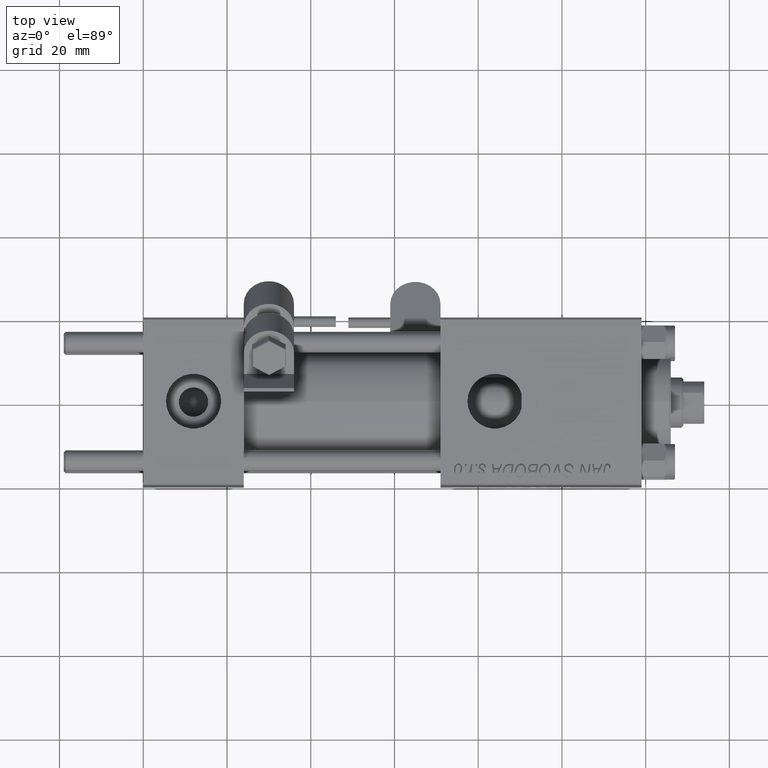
[diagram: clean part render]
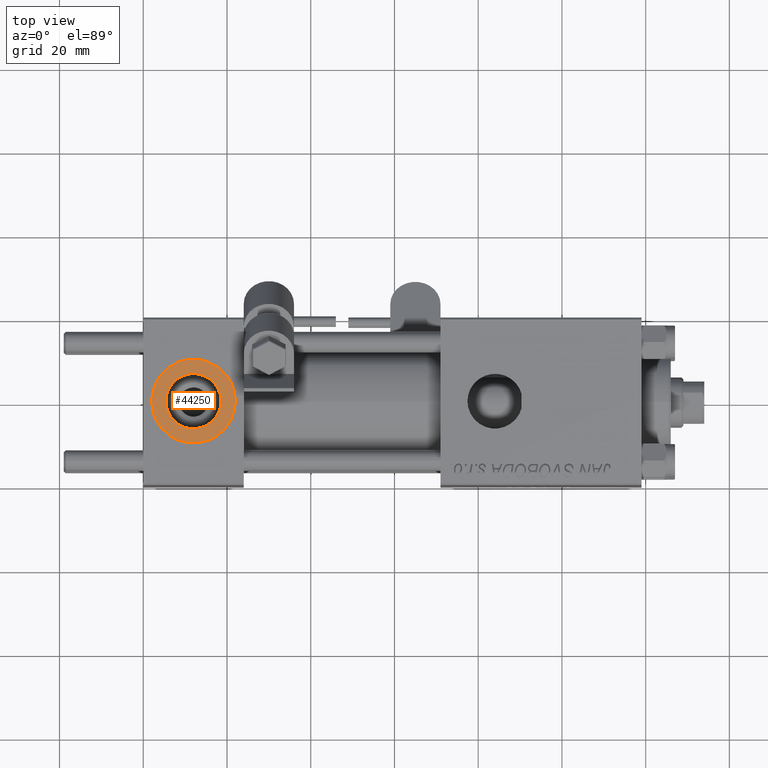
[diagram: same view with one face highlighted and labeled with its STEP entity id]
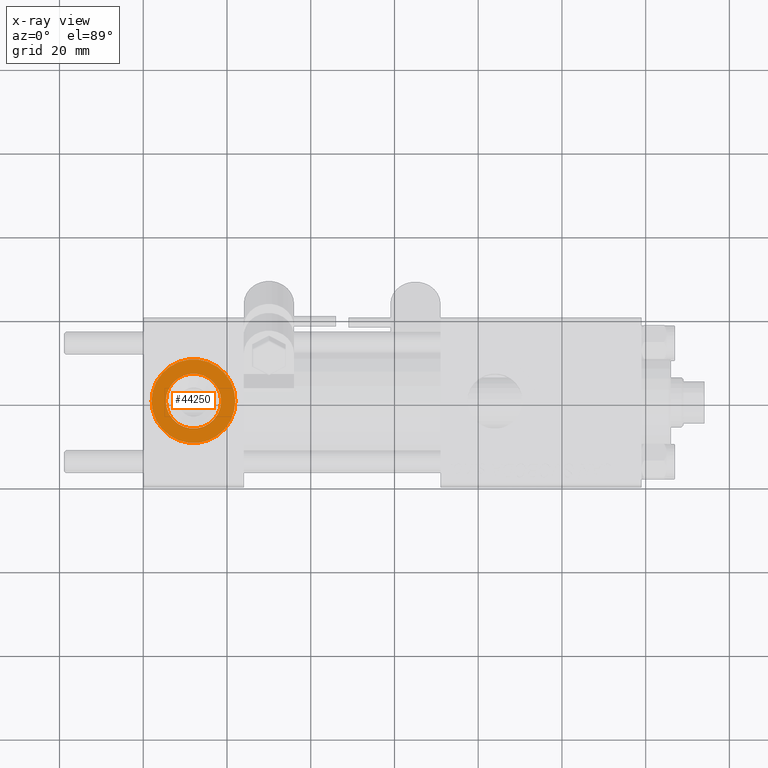
[diagram: x-ray of the same camera — body ghosted, the highlighted face saturated]
A machine part, top view. The second image highlights one B-rep face of the part: STEP entity #44250.
The next image is the same camera in x-ray: the body ghosted, the highlighted face saturated — about 0% of this face is hidden behind the body in this view.
In plain terms, the highlighted planar face has unit normal (0, 0, 1).
Its self-contained STEP definition (entity closure, byte-faithful):
#2315 = VERTEX_POINT ( 'NONE', #29175 ) ;
#2650 = VERTEX_POINT ( 'NONE', #37797 ) ;
#2938 = EDGE_CURVE ( 'NONE', #2315, #2650, #33022, .T. ) ;
#3213 = EDGE_CURVE ( 'NONE', #42202, #25600, #13338, .T. ) ;
#3463 = AXIS2_PLACEMENT_3D ( 'NONE', #27529, #43214, #39356 ) ;
#7973 = DIRECTION ( 'NONE',  ( 0.000000000000000000, 0.000000000000000000, 1.000000000000000000 ) ) ;
#9018 = CARTESIAN_POINT ( 'NONE',  ( 12.00000000000000000, 1.540743955509788682E-30, 19.79999999999999716 ) ) ;
#9505 = CARTESIAN_POINT ( 'NONE',  ( 22.00000000000000000, 1.540743955509788682E-30, 19.79999999999999716 ) ) ;
#10144 = EDGE_LOOP ( 'NONE', ( #22123, #24034 ) ) ;
#13338 = CIRCLE ( 'NONE', #40412, 9.999999999999998224 ) ;
#17261 = DIRECTION ( 'NONE',  ( 0.000000000000000000, 0.000000000000000000, 1.000000000000000000 ) ) ;
#17946 = EDGE_CURVE ( 'NONE', #2650, #2315, #49020, .T. ) ;
#21237 = ORIENTED_EDGE ( 'NONE', *, *, #2938, .F. ) ;
#22123 = ORIENTED_EDGE ( 'NONE', *, *, #32298, .T. ) ;
#22747 = PLANE ( 'NONE',  #46497 ) ;
#22997 = CARTESIAN_POINT ( 'NONE',  ( 12.00000000000000000, 1.540743955509788682E-30, 19.79999999999999716 ) ) ;
#24034 = ORIENTED_EDGE ( 'NONE', *, *, #3213, .T. ) ;
#25600 = VERTEX_POINT ( 'NONE', #9505 ) ;
#27529 = CARTESIAN_POINT ( 'NONE',  ( 12.00000000000000000, 1.540743955509788682E-30, 19.79999999999999716 ) ) ;
#27614 = DIRECTION ( 'NONE',  ( 1.000000000000000000, 0.000000000000000000, -0.000000000000000000 ) ) ;
#29175 = CARTESIAN_POINT ( 'NONE',  ( 5.420000000000000817, 8.058175938389596335E-16, 19.79999999999999716 ) ) ;
#30701 = FACE_BOUND ( 'NONE', #43272, .T. ) ;
#31305 = CIRCLE ( 'NONE', #40351, 9.999999999999998224 ) ;
#31842 = DIRECTION ( 'NONE',  ( 0.000000000000000000, 0.000000000000000000, 1.000000000000000000 ) ) ;
#31884 = CARTESIAN_POINT ( 'NONE',  ( 12.00000000000000000, 1.540743955509788682E-30, 19.79999999999999716 ) ) ;
#32298 = EDGE_CURVE ( 'NONE', #25600, #42202, #31305, .T. ) ;
#32917 = DIRECTION ( 'NONE',  ( 1.000000000000000000, 0.000000000000000000, 0.000000000000000000 ) ) ;
#33022 = CIRCLE ( 'NONE', #3463, 6.579999999999999183 ) ;
#34589 = CARTESIAN_POINT ( 'NONE',  ( 2.000000000000003553, 1.224646799147354440E-15, 19.79999999999999716 ) ) ;
#37797 = CARTESIAN_POINT ( 'NONE',  ( 18.57999999999999829, 1.540743955509788682E-30, 19.79999999999999716 ) ) ;
#38768 = CARTESIAN_POINT ( 'NONE',  ( 12.00000000000000000, 1.540743955509788682E-30, 19.79999999999999716 ) ) ;
#39182 = DIRECTION ( 'NONE',  ( 0.000000000000000000, 0.000000000000000000, 1.000000000000000000 ) ) ;
#39356 = DIRECTION ( 'NONE',  ( 1.000000000000000000, 0.000000000000000000, 0.000000000000000000 ) ) ;
#40351 = AXIS2_PLACEMENT_3D ( 'NONE', #9018, #17261, #32917 ) ;
#40412 = AXIS2_PLACEMENT_3D ( 'NONE', #38768, #31842, #42648 ) ;
#42202 = VERTEX_POINT ( 'NONE', #34589 ) ;
#42648 = DIRECTION ( 'NONE',  ( 1.000000000000000000, 0.000000000000000000, 0.000000000000000000 ) ) ;
#43214 = DIRECTION ( 'NONE',  ( 0.000000000000000000, 0.000000000000000000, 1.000000000000000000 ) ) ;
#43272 = EDGE_LOOP ( 'NONE', ( #50828, #21237 ) ) ;
#44250 = ADVANCED_FACE ( 'NONE', ( #30701, #46886 ), #22747, .T. ) ;
#44904 = AXIS2_PLACEMENT_3D ( 'NONE', #31884, #7973, #47568 ) ;
#46497 = AXIS2_PLACEMENT_3D ( 'NONE', #22997, #39182, #27614 ) ;
#46886 = FACE_OUTER_BOUND ( 'NONE', #10144, .T. ) ;
#47568 = DIRECTION ( 'NONE',  ( 1.000000000000000000, 0.000000000000000000, 0.000000000000000000 ) ) ;
#49020 = CIRCLE ( 'NONE', #44904, 6.579999999999999183 ) ;
#50828 = ORIENTED_EDGE ( 'NONE', *, *, #17946, .F. ) ;